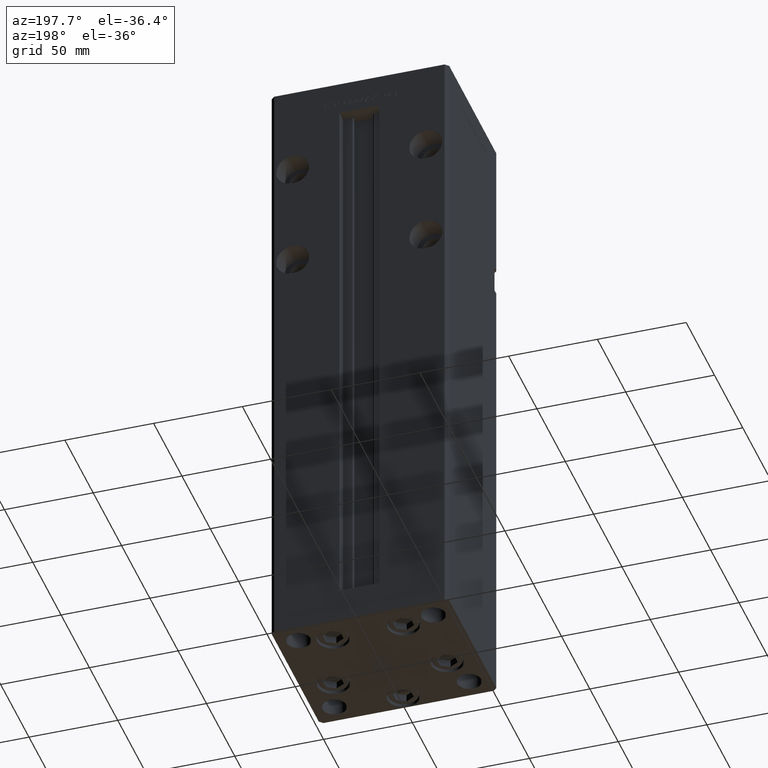
[diagram: clean part render]
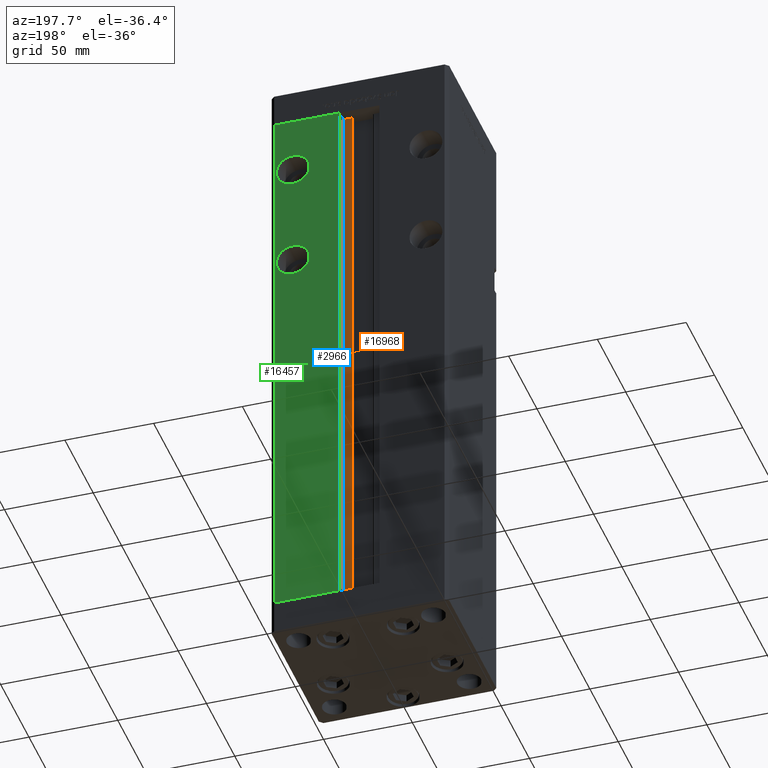
[diagram: same view with three faces highlighted in distinct colors, each labeled with its STEP entity id]
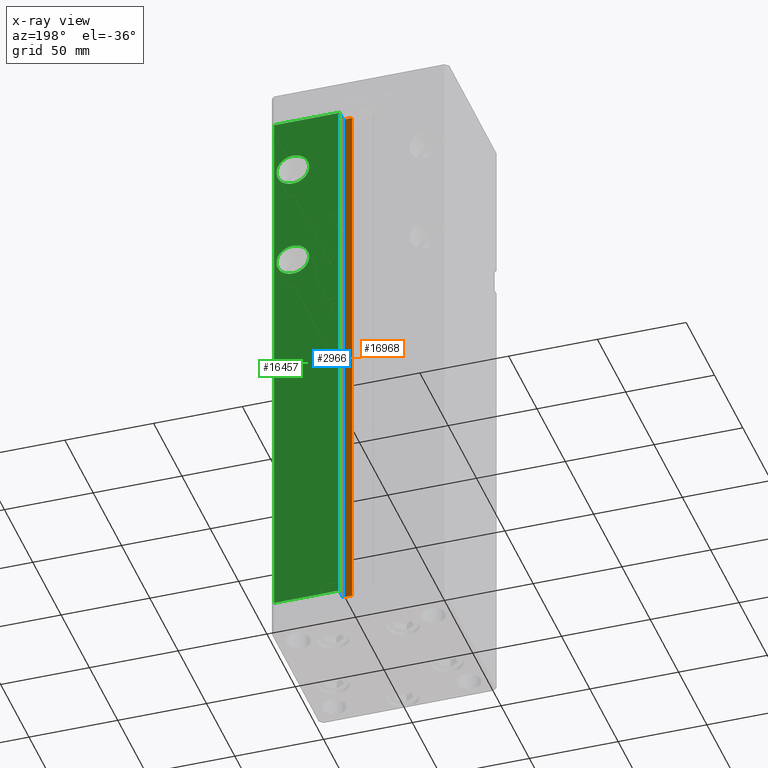
[diagram: x-ray of the same camera — body ghosted, the three highlighted faces saturated]
A machine part, auxiliary view with three faces highlighted in distinct colors.
The next image is the same camera in x-ray (body ghosted, the three faces saturated) — at least one of them is partly hidden behind the body in this view.
Their STEP definitions:

[orange] entity #16968 — the highlighted planar face has unit normal (0, -1, 0).
#500 = VERTEX_POINT ( 'NONE', #9120 ) ;
#1432 = EDGE_CURVE ( 'NONE', #29954, #31026, #4181, .T. ) ;
#3257 = LINE ( 'NONE', #12113, #33196 ) ;
#3535 = VECTOR ( 'NONE', #45083, 1000.000000000000000 ) ;
#3781 = DIRECTION ( 'NONE',  ( -1.000000000000000000, 0.000000000000000000, 0.000000000000000000 ) ) ;
#4181 = LINE ( 'NONE', #24893, #3535 ) ;
#4352 = DIRECTION ( 'NONE',  ( 1.000000000000000000, 0.000000000000000000, 0.000000000000000000 ) ) ;
#4920 = VECTOR ( 'NONE', #45624, 1000.000000000000000 ) ;
#5415 = ORIENTED_EDGE ( 'NONE', *, *, #49655, .F. ) ;
#8332 = AXIS2_PLACEMENT_3D ( 'NONE', #47568, #10161, #10972 ) ;
#9120 = CARTESIAN_POINT ( 'NONE',  ( 11.24999999999999645, 37.00000000000000000, 318.5000000000000000 ) ) ;
#9514 = EDGE_LOOP ( 'NONE', ( #10309, #13215, #49859, #5415 ) ) ;
#10161 = DIRECTION ( 'NONE',  ( 0.000000000000000000, -1.000000000000000000, 0.000000000000000000 ) ) ;
#10309 = ORIENTED_EDGE ( 'NONE', *, *, #51299, .F. ) ;
#10972 = DIRECTION ( 'NONE',  ( 0.000000000000000000, -0.000000000000000000, -1.000000000000000000 ) ) ;
#12113 = CARTESIAN_POINT ( 'NONE',  ( 0.000000000000000000, 37.00000000000000000, 318.5000000000000000 ) ) ;
#12805 = LINE ( 'NONE', #25702, #4920 ) ;
#13215 = ORIENTED_EDGE ( 'NONE', *, *, #16514, .F. ) ;
#13624 = CARTESIAN_POINT ( 'NONE',  ( 6.183333333333996151, 37.00000000000000000, 318.5000000000000000 ) ) ;
#16203 = LINE ( 'NONE', #24007, #39293 ) ;
#16514 = EDGE_CURVE ( 'NONE', #29954, #52394, #16203, .T. ) ;
#16968 = ADVANCED_FACE ( 'NONE', ( #26308 ), #43273, .F. ) ;
#24007 = CARTESIAN_POINT ( 'NONE',  ( 6.183333333333996151, 37.00000000000000000, 0.000000000000000000 ) ) ;
#24893 = CARTESIAN_POINT ( 'NONE',  ( 6.183333333333996151, 37.00000000000000000, 0.000000000000000000 ) ) ;
#25702 = CARTESIAN_POINT ( 'NONE',  ( 11.24999999999999645, 37.00000000000000000, 0.000000000000000000 ) ) ;
#26308 = FACE_OUTER_BOUND ( 'NONE', #9514, .T. ) ;
#26753 = CARTESIAN_POINT ( 'NONE',  ( 11.24999999999999645, 37.00000000000000000, 0.000000000000000000 ) ) ;
#26799 = CARTESIAN_POINT ( 'NONE',  ( 6.183333333333996151, 37.00000000000000000, 0.000000000000000000 ) ) ;
#29954 = VERTEX_POINT ( 'NONE', #26799 ) ;
#31026 = VERTEX_POINT ( 'NONE', #13624 ) ;
#33196 = VECTOR ( 'NONE', #3781, 1000.000000000000000 ) ;
#39293 = VECTOR ( 'NONE', #4352, 1000.000000000000000 ) ;
#43273 = PLANE ( 'NONE',  #8332 ) ;
#45083 = DIRECTION ( 'NONE',  ( -0.000000000000000000, -0.000000000000000000, 1.000000000000000000 ) ) ;
#45624 = DIRECTION ( 'NONE',  ( -0.000000000000000000, -0.000000000000000000, 1.000000000000000000 ) ) ;
#47568 = CARTESIAN_POINT ( 'NONE',  ( 6.183333333333996151, 37.00000000000000000, 0.000000000000000000 ) ) ;
#49655 = EDGE_CURVE ( 'NONE', #500, #31026, #3257, .T. ) ;
#49859 = ORIENTED_EDGE ( 'NONE', *, *, #1432, .T. ) ;
#51299 = EDGE_CURVE ( 'NONE', #52394, #500, #12805, .T. ) ;
#52394 = VERTEX_POINT ( 'NONE', #26753 ) ;

[blue] entity #2966 — the highlighted planar face has unit normal (1, 0, 0).
#500 = VERTEX_POINT ( 'NONE', #9120 ) ;
#1932 = VECTOR ( 'NONE', #19244, 1000.000000000000000 ) ;
#2835 = CARTESIAN_POINT ( 'NONE',  ( 11.24999999999999645, 43.50000000000000000, 0.000000000000000000 ) ) ;
#2938 = ORIENTED_EDGE ( 'NONE', *, *, #4220, .F. ) ;
#2966 = ADVANCED_FACE ( 'NONE', ( #21252 ), #38726, .F. ) ;
#2990 = EDGE_CURVE ( 'NONE', #52394, #34567, #18266, .T. ) ;
#4220 = EDGE_CURVE ( 'NONE', #21041, #500, #52217, .T. ) ;
#4920 = VECTOR ( 'NONE', #45624, 1000.000000000000000 ) ;
#5254 = VECTOR ( 'NONE', #37675, 1000.000000000000000 ) ;
#5364 = CARTESIAN_POINT ( 'NONE',  ( 11.24999999999999645, 37.00000000000000000, 0.000000000000000000 ) ) ;
#8004 = CARTESIAN_POINT ( 'NONE',  ( 11.24999999999998934, 43.50000000000000000, 318.5000000000000000 ) ) ;
#9120 = CARTESIAN_POINT ( 'NONE',  ( 11.24999999999999645, 37.00000000000000000, 318.5000000000000000 ) ) ;
#9410 = DIRECTION ( 'NONE',  ( 0.000000000000000000, 0.000000000000000000, -1.000000000000000000 ) ) ;
#12805 = LINE ( 'NONE', #25702, #4920 ) ;
#15850 = ORIENTED_EDGE ( 'NONE', *, *, #2990, .F. ) ;
#18266 = LINE ( 'NONE', #42770, #5254 ) ;
#19244 = DIRECTION ( 'NONE',  ( -0.000000000000000000, -0.000000000000000000, 1.000000000000000000 ) ) ;
#21041 = VERTEX_POINT ( 'NONE', #8004 ) ;
#21252 = FACE_OUTER_BOUND ( 'NONE', #39910, .T. ) ;
#21569 = AXIS2_PLACEMENT_3D ( 'NONE', #5364, #38196, #9410 ) ;
#22213 = CARTESIAN_POINT ( 'NONE',  ( 11.24999999999999645, 43.50000000000000000, 0.000000000000000000 ) ) ;
#23342 = VECTOR ( 'NONE', #35813, 1000.000000000000000 ) ;
#25702 = CARTESIAN_POINT ( 'NONE',  ( 11.24999999999999645, 37.00000000000000000, 0.000000000000000000 ) ) ;
#26753 = CARTESIAN_POINT ( 'NONE',  ( 11.24999999999999645, 37.00000000000000000, 0.000000000000000000 ) ) ;
#33967 = EDGE_CURVE ( 'NONE', #34567, #21041, #39702, .T. ) ;
#34567 = VERTEX_POINT ( 'NONE', #22213 ) ;
#35813 = DIRECTION ( 'NONE',  ( -0.000000000000000000, -1.000000000000000000, 0.000000000000000000 ) ) ;
#36081 = CARTESIAN_POINT ( 'NONE',  ( 11.24999999999999645, 0.000000000000000000, 318.5000000000000000 ) ) ;
#37675 = DIRECTION ( 'NONE',  ( 0.000000000000000000, 1.000000000000000000, 0.000000000000000000 ) ) ;
#38196 = DIRECTION ( 'NONE',  ( 1.000000000000000000, -0.000000000000000000, 0.000000000000000000 ) ) ;
#38726 = PLANE ( 'NONE',  #21569 ) ;
#39702 = LINE ( 'NONE', #2835, #1932 ) ;
#39910 = EDGE_LOOP ( 'NONE', ( #40296, #15850, #44370, #2938 ) ) ;
#40296 = ORIENTED_EDGE ( 'NONE', *, *, #33967, .F. ) ;
#42770 = CARTESIAN_POINT ( 'NONE',  ( 11.24999999999999645, 37.00000000000000000, 0.000000000000000000 ) ) ;
#44370 = ORIENTED_EDGE ( 'NONE', *, *, #51299, .T. ) ;
#45624 = DIRECTION ( 'NONE',  ( -0.000000000000000000, -0.000000000000000000, 1.000000000000000000 ) ) ;
#51299 = EDGE_CURVE ( 'NONE', #52394, #500, #12805, .T. ) ;
#52217 = LINE ( 'NONE', #36081, #23342 ) ;
#52394 = VERTEX_POINT ( 'NONE', #26753 ) ;

[green] entity #16457 — the highlighted planar face has unit normal (0, -1, 0).
#689 = VERTEX_POINT ( 'NONE', #13480 ) ;
#811 = DIRECTION ( 'NONE',  ( 0.000000000000000000, 0.000000000000000000, -1.000000000000000000 ) ) ;
#1932 = VECTOR ( 'NONE', #19244, 1000.000000000000000 ) ;
#2049 = VECTOR ( 'NONE', #26769, 1000.000000000000000 ) ;
#2199 = CIRCLE ( 'NONE', #35742, 9.250000000000008882 ) ;
#2835 = CARTESIAN_POINT ( 'NONE',  ( 11.24999999999999645, 43.50000000000000000, 0.000000000000000000 ) ) ;
#3560 = DIRECTION ( 'NONE',  ( 0.000000000000000000, 0.000000000000000000, 1.000000000000000000 ) ) ;
#3738 = ORIENTED_EDGE ( 'NONE', *, *, #32110, .T. ) ;
#4151 = EDGE_LOOP ( 'NONE', ( #3738, #37454, #39551, #48498 ) ) ;
#7227 = CIRCLE ( 'NONE', #12375, 9.249999999999980460 ) ;
#7375 = CARTESIAN_POINT ( 'NONE',  ( 37.50000000000000000, 43.50000000000000000, 295.7499999999999432 ) ) ;
#8004 = CARTESIAN_POINT ( 'NONE',  ( 11.24999999999998934, 43.50000000000000000, 318.5000000000000000 ) ) ;
#10192 = CARTESIAN_POINT ( 'NONE',  ( 37.50000000000000000, 43.50000000000000000, 226.5000000000000000 ) ) ;
#10919 = AXIS2_PLACEMENT_3D ( 'NONE', #12523, #32977, #28948 ) ;
#12375 = AXIS2_PLACEMENT_3D ( 'NONE', #24530, #40691, #3560 ) ;
#12523 = CARTESIAN_POINT ( 'NONE',  ( 37.50000000000000000, 43.50000000000000000, 286.5000000000000000 ) ) ;
#13480 = CARTESIAN_POINT ( 'NONE',  ( 48.00000000000000711, 43.50000000000000000, 318.5000000000000000 ) ) ;
#14159 = CIRCLE ( 'NONE', #23620, 9.250000000000008882 ) ;
#14646 = DIRECTION ( 'NONE',  ( -1.000000000000000000, 0.000000000000000000, 0.000000000000000000 ) ) ;
#14665 = VERTEX_POINT ( 'NONE', #17237 ) ;
#14975 = CARTESIAN_POINT ( 'NONE',  ( 48.00000000000000711, 43.50000000000000000, 0.000000000000000000 ) ) ;
#15384 = ORIENTED_EDGE ( 'NONE', *, *, #50498, .F. ) ;
#16207 = CARTESIAN_POINT ( 'NONE',  ( 37.50000000000000000, 43.50000000000000000, 235.7500000000000284 ) ) ;
#16457 = ADVANCED_FACE ( 'NONE', ( #52795, #49556, #32079 ), #53067, .F. ) ;
#17237 = CARTESIAN_POINT ( 'NONE',  ( 37.50000000000000000, 43.50000000000000000, 277.2500000000000000 ) ) ;
#19244 = DIRECTION ( 'NONE',  ( -0.000000000000000000, -0.000000000000000000, 1.000000000000000000 ) ) ;
#19782 = VERTEX_POINT ( 'NONE', #16207 ) ;
#20822 = EDGE_CURVE ( 'NONE', #689, #29439, #32823, .T. ) ;
#21022 = CARTESIAN_POINT ( 'NONE',  ( -11.24999999999999645, 43.50000000000000000, 318.5000000000000000 ) ) ;
#21041 = VERTEX_POINT ( 'NONE', #8004 ) ;
#21876 = VECTOR ( 'NONE', #14646, 1000.000000000000000 ) ;
#22213 = CARTESIAN_POINT ( 'NONE',  ( 11.24999999999999645, 43.50000000000000000, 0.000000000000000000 ) ) ;
#22967 = AXIS2_PLACEMENT_3D ( 'NONE', #21022, #28844, #28581 ) ;
#23620 = AXIS2_PLACEMENT_3D ( 'NONE', #41185, #41706, #811 ) ;
#24530 = CARTESIAN_POINT ( 'NONE',  ( 37.50000000000000000, 43.50000000000000000, 286.5000000000000000 ) ) ;
#26769 = DIRECTION ( 'NONE',  ( 1.000000000000000000, 0.000000000000000000, 0.000000000000000000 ) ) ;
#28581 = DIRECTION ( 'NONE',  ( 0.000000000000000000, -0.000000000000000000, -1.000000000000000000 ) ) ;
#28844 = DIRECTION ( 'NONE',  ( 0.000000000000000000, -1.000000000000000000, 0.000000000000000000 ) ) ;
#28948 = DIRECTION ( 'NONE',  ( 0.000000000000000000, 0.000000000000000000, 1.000000000000000000 ) ) ;
#29439 = VERTEX_POINT ( 'NONE', #14975 ) ;
#29891 = CARTESIAN_POINT ( 'NONE',  ( 37.50000000000000000, 43.50000000000000000, 217.2500000000000000 ) ) ;
#30372 = DIRECTION ( 'NONE',  ( 0.000000000000000000, 0.000000000000000000, -1.000000000000000000 ) ) ;
#30574 = EDGE_CURVE ( 'NONE', #19782, #34104, #14159, .T. ) ;
#30717 = EDGE_LOOP ( 'NONE', ( #15384, #39672 ) ) ;
#32079 = FACE_OUTER_BOUND ( 'NONE', #4151, .T. ) ;
#32110 = EDGE_CURVE ( 'NONE', #29439, #34567, #34829, .T. ) ;
#32577 = VECTOR ( 'NONE', #35346, 1000.000000000000000 ) ;
#32710 = ORIENTED_EDGE ( 'NONE', *, *, #42682, .F. ) ;
#32823 = LINE ( 'NONE', #35872, #32577 ) ;
#32912 = VERTEX_POINT ( 'NONE', #7375 ) ;
#32977 = DIRECTION ( 'NONE',  ( 0.000000000000000000, 1.000000000000000000, 0.000000000000000000 ) ) ;
#33967 = EDGE_CURVE ( 'NONE', #34567, #21041, #39702, .T. ) ;
#34104 = VERTEX_POINT ( 'NONE', #29891 ) ;
#34567 = VERTEX_POINT ( 'NONE', #22213 ) ;
#34829 = LINE ( 'NONE', #43185, #21876 ) ;
#35346 = DIRECTION ( 'NONE',  ( -0.000000000000000000, -0.000000000000000000, -1.000000000000000000 ) ) ;
#35652 = CARTESIAN_POINT ( 'NONE',  ( -11.24999999999999645, 43.50000000000000000, 318.5000000000000000 ) ) ;
#35742 = AXIS2_PLACEMENT_3D ( 'NONE', #10192, #47591, #30372 ) ;
#35872 = CARTESIAN_POINT ( 'NONE',  ( 48.00000000000000711, 43.50000000000000000, 318.5000000000000000 ) ) ;
#37454 = ORIENTED_EDGE ( 'NONE', *, *, #33967, .T. ) ;
#38186 = EDGE_CURVE ( 'NONE', #21041, #689, #47754, .T. ) ;
#39415 = EDGE_CURVE ( 'NONE', #14665, #32912, #7227, .T. ) ;
#39551 = ORIENTED_EDGE ( 'NONE', *, *, #38186, .T. ) ;
#39672 = ORIENTED_EDGE ( 'NONE', *, *, #39415, .F. ) ;
#39702 = LINE ( 'NONE', #2835, #1932 ) ;
#40691 = DIRECTION ( 'NONE',  ( 0.000000000000000000, 1.000000000000000000, 0.000000000000000000 ) ) ;
#41185 = CARTESIAN_POINT ( 'NONE',  ( 37.50000000000000000, 43.50000000000000000, 226.5000000000000000 ) ) ;
#41706 = DIRECTION ( 'NONE',  ( 0.000000000000000000, 1.000000000000000000, -0.000000000000000000 ) ) ;
#42682 = EDGE_CURVE ( 'NONE', #34104, #19782, #2199, .T. ) ;
#43185 = CARTESIAN_POINT ( 'NONE',  ( -11.24999999999999645, 43.50000000000000000, 0.000000000000000000 ) ) ;
#45555 = ORIENTED_EDGE ( 'NONE', *, *, #30574, .F. ) ;
#46376 = EDGE_LOOP ( 'NONE', ( #45555, #32710 ) ) ;
#47591 = DIRECTION ( 'NONE',  ( 0.000000000000000000, 1.000000000000000000, -0.000000000000000000 ) ) ;
#47754 = LINE ( 'NONE', #35652, #2049 ) ;
#48498 = ORIENTED_EDGE ( 'NONE', *, *, #20822, .T. ) ;
#49556 = FACE_BOUND ( 'NONE', #30717, .T. ) ;
#50498 = EDGE_CURVE ( 'NONE', #32912, #14665, #51284, .T. ) ;
#51284 = CIRCLE ( 'NONE', #10919, 9.249999999999980460 ) ;
#52795 = FACE_BOUND ( 'NONE', #46376, .T. ) ;
#53067 = PLANE ( 'NONE',  #22967 ) ;